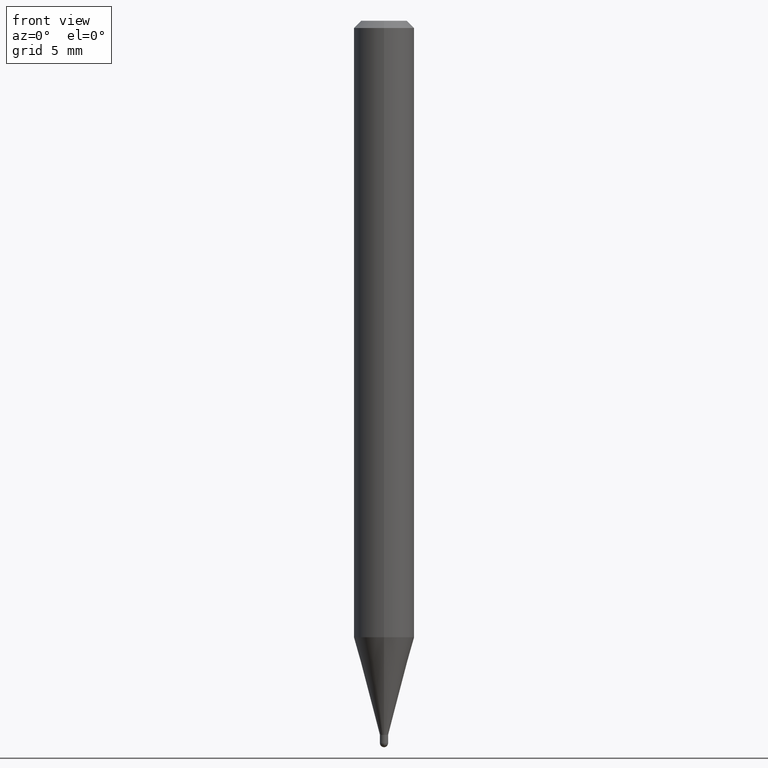
[diagram: clean part render]
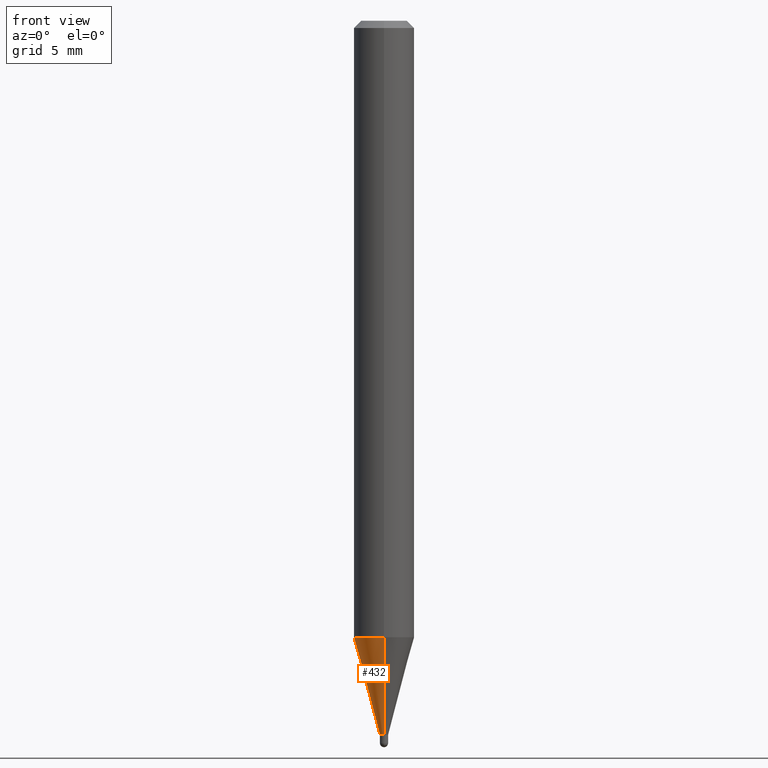
[diagram: same view with one face highlighted and labeled with its STEP entity id]
A machine part, front view. The second image highlights one B-rep face of the part: STEP entity #432.
In plain terms, the highlighted conical surface has half-angle 15 deg.
Its self-contained STEP definition (entity closure, byte-faithful):
#8 = VERTEX_POINT ( 'NONE', #30 ) ;
#20 = VECTOR ( 'NONE', #301, 39.37007874015748854 ) ;
#27 = LINE ( 'NONE', #143, #20 ) ;
#30 = CARTESIAN_POINT ( 'NONE',  ( -4.364351673553605587E-16, -0.06250000000000445477, -1.272969256391287551 ) ) ;
#31 = CARTESIAN_POINT ( 'NONE',  ( 3.605859241911730090E-29, -5.148167055584161688E-15, -1.474500000000000144 ) ) ;
#35 = AXIS2_PLACEMENT_3D ( 'NONE', #351, #133, #422 ) ;
#55 = DIRECTION ( 'NONE',  ( -2.445479309536609093E-29, 3.491466297446023562E-15, 1.000000000000000000 ) ) ;
#64 = CARTESIAN_POINT ( 'NONE',  ( 6.039613253964597870E-17, 0.008499999999995049710, -1.474500000000000144 ) ) ;
#71 = DIRECTION ( 'NONE',  ( -2.445479309536609093E-29, 3.491466297446023562E-15, 1.000000000000000000 ) ) ;
#86 = CONICAL_SURFACE ( 'NONE', #287, 0.008500000000000198369, 0.2617993877991573459 ) ;
#115 = VERTEX_POINT ( 'NONE', #431 ) ;
#133 = DIRECTION ( 'NONE',  ( -2.445479309536609093E-29, 3.491466297446023562E-15, 1.000000000000000000 ) ) ;
#137 = DIRECTION ( 'NONE',  ( -6.982962677686265922E-15, -1.000000000000000000, 0.000000000000000000 ) ) ;
#143 = CARTESIAN_POINT ( 'NONE',  ( -5.935518276029858083E-17, -0.008500000000005345294, -1.474500000000000144 ) ) ;
#180 = CARTESIAN_POINT ( 'NONE',  ( -5.935518276029858083E-17, -0.008500000000005345294, -1.474500000000000144 ) ) ;
#188 = CIRCLE ( 'NONE', #483, 0.008500000000000198369 ) ;
#209 = EDGE_LOOP ( 'NONE', ( #360, #504, #377, #308 ) ) ;
#211 = DIRECTION ( 'NONE',  ( -6.982962677686265922E-15, -1.000000000000000000, 0.000000000000000000 ) ) ;
#217 = CARTESIAN_POINT ( 'NONE',  ( 2.522426711948700069E-16, 0.008499999999995049710, -1.474500000000000144 ) ) ;
#224 = EDGE_CURVE ( 'NONE', #374, #271, #188, .T. ) ;
#262 = DIRECTION ( 'NONE',  ( 1.839019923739648830E-15, 0.2588190451025317862, 0.9659258262890653146 ) ) ;
#271 = VERTEX_POINT ( 'NONE', #180 ) ;
#287 = AXIS2_PLACEMENT_3D ( 'NONE', #31, #71, #137 ) ;
#301 = DIRECTION ( 'NONE',  ( -1.807323732225377865E-15, -0.2588190451025250138, 0.9659258262890670910 ) ) ;
#308 = ORIENTED_EDGE ( 'NONE', *, *, #454, .F. ) ;
#348 = FACE_OUTER_BOUND ( 'NONE', #209, .T. ) ;
#351 = CARTESIAN_POINT ( 'NONE',  ( 3.113019978181097375E-29, -4.444529256375107421E-15, -1.272969256391287773 ) ) ;
#360 = ORIENTED_EDGE ( 'NONE', *, *, #463, .F. ) ;
#374 = VERTEX_POINT ( 'NONE', #217 ) ;
#377 = ORIENTED_EDGE ( 'NONE', *, *, #424, .T. ) ;
#412 = VECTOR ( 'NONE', #262, 39.37007874015748143 ) ;
#419 = CIRCLE ( 'NONE', #35, 0.06250000000000000000 ) ;
#422 = DIRECTION ( 'NONE',  ( -6.982962677686265922E-15, -1.000000000000000000, 4.370956789862821150E-15 ) ) ;
#424 = EDGE_CURVE ( 'NONE', #271, #8, #27, .T. ) ;
#430 = LINE ( 'NONE', #64, #412 ) ;
#431 = CARTESIAN_POINT ( 'NONE',  ( 4.440892098500935790E-16, 0.06249999999999554523, -1.272969256391287995 ) ) ;
#432 = ADVANCED_FACE ( 'NONE', ( #348 ), #86, .T. ) ;
#454 = EDGE_CURVE ( 'NONE', #115, #8, #419, .T. ) ;
#463 = EDGE_CURVE ( 'NONE', #374, #115, #430, .T. ) ;
#483 = AXIS2_PLACEMENT_3D ( 'NONE', #496, #55, #211 ) ;
#496 = CARTESIAN_POINT ( 'NONE',  ( 3.605859241911730090E-29, -5.148167055584161688E-15, -1.474500000000000144 ) ) ;
#504 = ORIENTED_EDGE ( 'NONE', *, *, #224, .T. ) ;